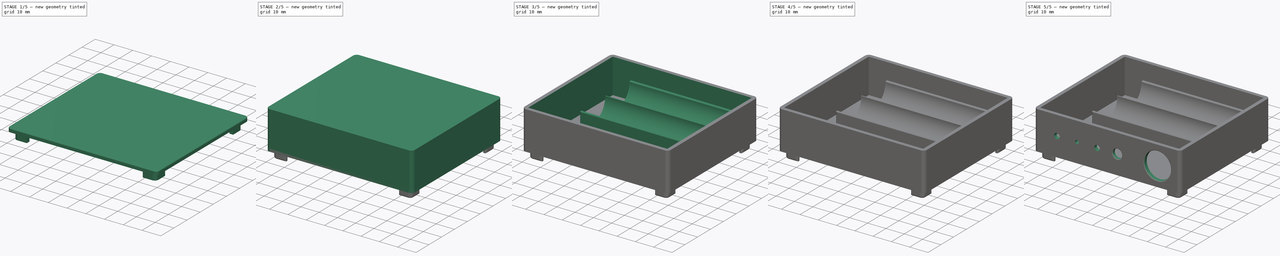
[diagram: build sequence overview — one tinted view per stage of 5, left to right]
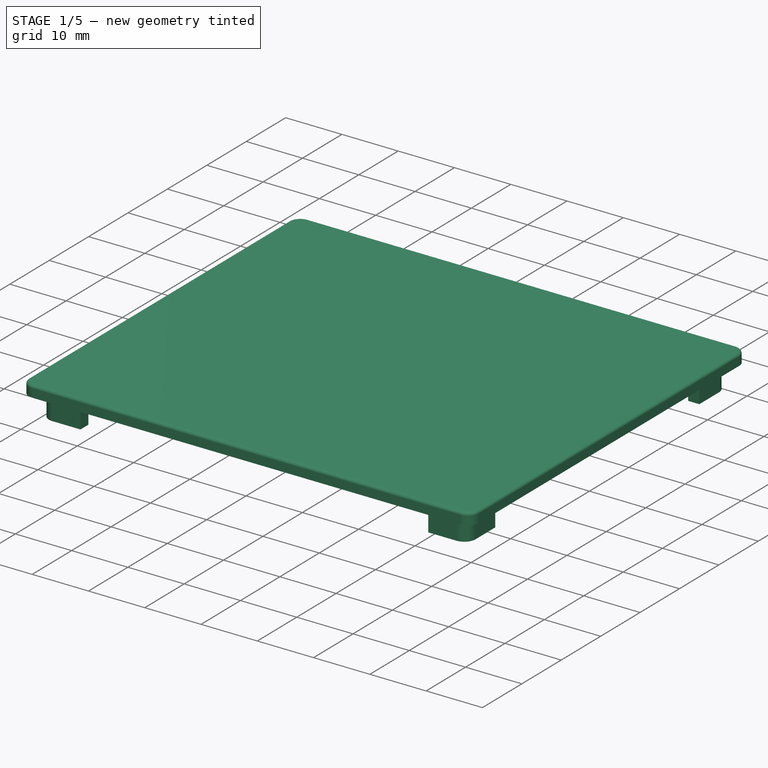
[diagram: stage 1 of 5 — iso view after this stage's code; geometry added in this stage tinted green]
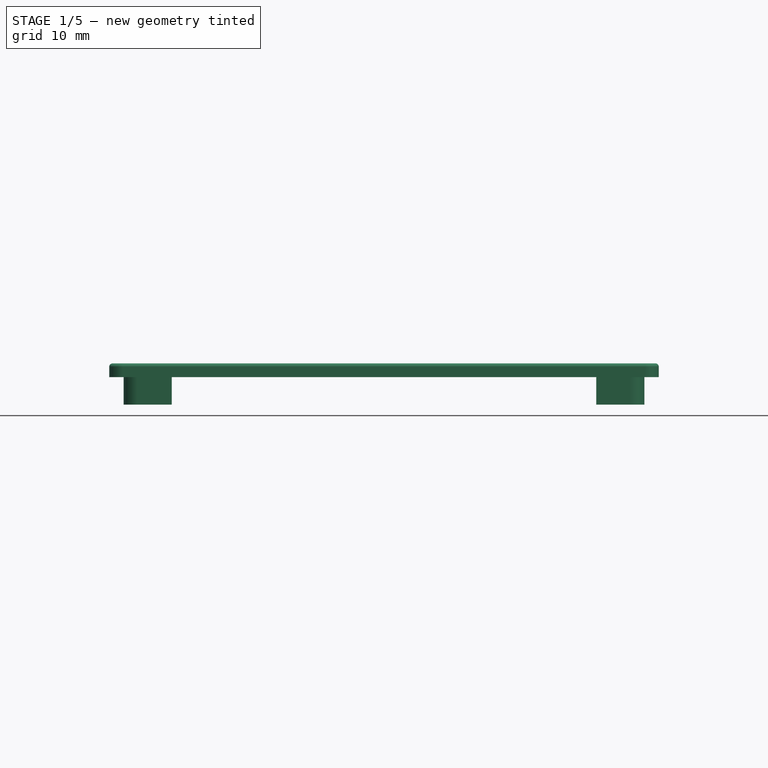
[diagram: stage 1 of 5 — front view after this stage's code; geometry added in this stage tinted green]
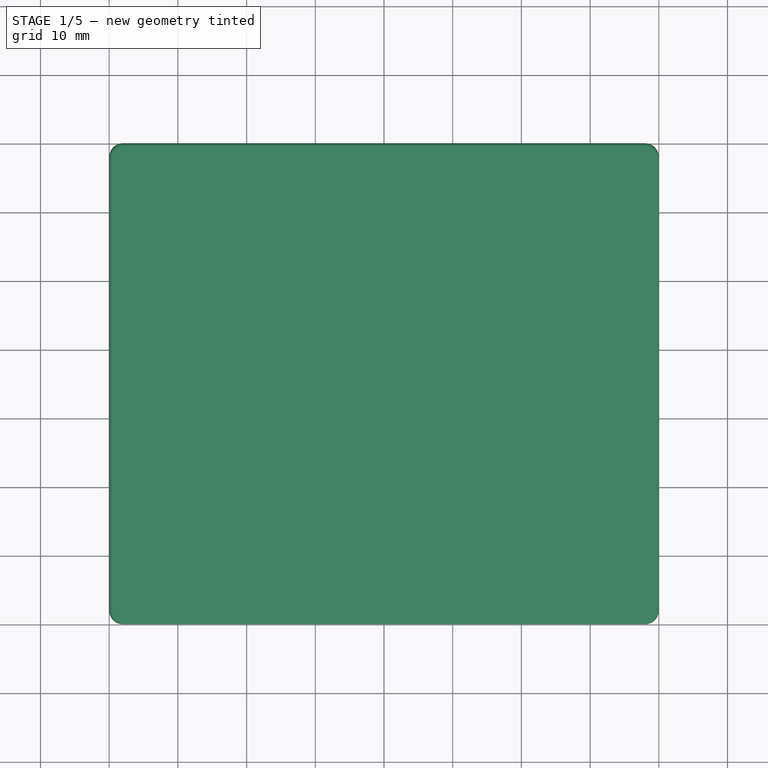
[diagram: stage 1 of 5 — top view after this stage's code; geometry added in this stage tinted green]
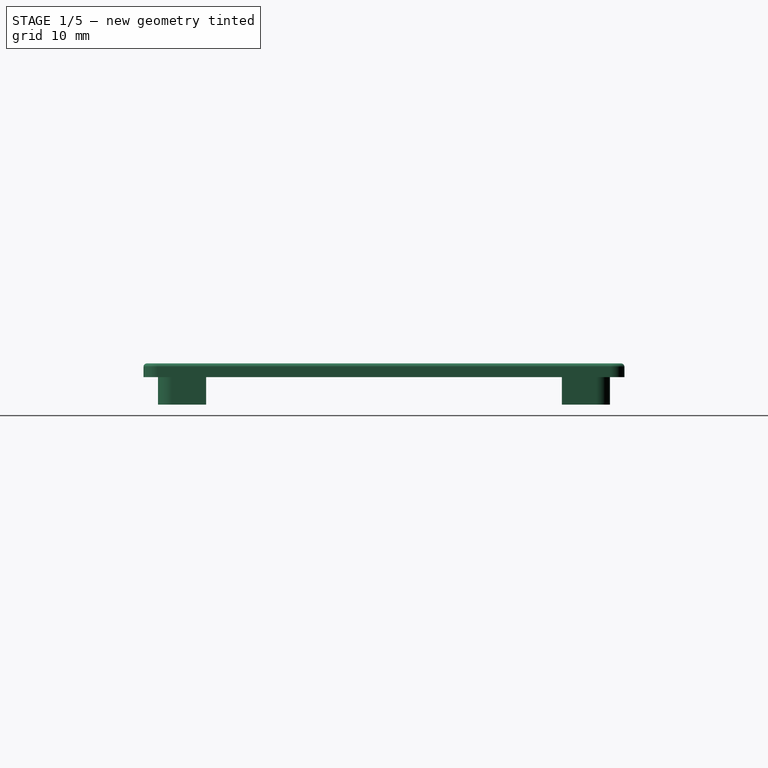
[diagram: stage 1 of 5 — right view after this stage's code; geometry added in this stage tinted green]
FCSTD DOCUMENT  (FreeCAD 1.0R39319 (Git))
Label: patterikotelo_3_7V
License: All rights reserved
LicenseURL: https://en.wikipedia.org/wiki/All_rights_reserved
objects: Sketcher::SketchObject×10, PartDesign::Pocket×6, PartDesign::Fillet×6, PartDesign::Pad×4, PartDesign::Body×2, App::Part×1
note: 70 computed .brp shape members not serialized (recipe doc carries the construction recipe); baked Part::Feature solids carry a one-line shape summary decoded from their .brp

FEATURE [PartDesign::Body] Body  label="container"
  AllowCompound = false
  Group = -> [Sketch,Pad,Sketch001,Pocket,Sketch002,Pad001,Sketch003,Pocket001,Fillet,Sketch004,Pocket002,Sketch005,Pocket003,Sketch006,Pocket004,Sketch007,Pocket005,Fillet001,Fillet002]
  Origin = -> Origin
  Tip = -> Fillet002
FEATURE [Sketcher::SketchObject] Sketch008
  ArcFitTolerance = 1e-06
  AttachmentSupport = -> [XY_Plane002]
  FullyConstrained = true
  MakeInternals = false
  MapMode = 5
  sketch-geometry (12):
    g0: LineSegment StartX=2 StartY=0 StartZ=0 EndX=78 EndY=0 EndZ=0
    g1: LineSegment StartX=80 StartY=2 StartZ=0 EndX=80 EndY=68 EndZ=0
    g2: LineSegment StartX=78 StartY=70 StartZ=0 EndX=2 EndY=70 EndZ=0
    g3: LineSegment StartX=0 StartY=68 StartZ=0 EndX=0 EndY=2 EndZ=0
    g4: ArcOfCircle CenterX=2 CenterY=68 CenterZ=0 NormalX=0 NormalY=0 NormalZ=1 AngleXU=0 Radius=2 StartAngle=1.5708 EndAngle=3.14159
    g5: GeomPoint [constr] X=0 Y=70 Z=0
    g6: ArcOfCircle CenterX=78 CenterY=68 CenterZ=0 NormalX=0 NormalY=0 NormalZ=1 AngleXU=0 Radius=2 StartAngle=-9e-16 EndAngle=1.5708
    g7: GeomPoint [constr] X=80 Y=70 Z=0
    g8: ArcOfCircle CenterX=78 CenterY=2 CenterZ=0 NormalX=0 NormalY=0 NormalZ=1 AngleXU=0 Radius=2 StartAngle=4.71239 EndAngle=6.28319
    g9: GeomPoint [constr] X=80 Y=0 Z=0
    g10: ArcOfCircle CenterX=2 CenterY=2 CenterZ=0 NormalX=0 NormalY=0 NormalZ=1 AngleXU=0 Radius=2 StartAngle=3.14159 EndAngle=4.71239
    g11: GeomPoint [constr] X=0 Y=0 Z=0
  constraints (27):
    c: Horizontal(g0)
    c: Horizontal(g2)
    c: Vertical(g1)
    c: Vertical(g3)
    c: PointOnObject(g5,g2)
    c: PointOnObject(g5,g3)
    c: Tangent(g2,g4) = -1.5708
    c: Tangent(g3,g4) = -1.5708
    c: PointOnObject(g7,g1)
    c: PointOnObject(g7,g2)
    c: Tangent(g1,g6) = -1.5708
    c: Tangent(g2,g6) = -1.5708
    c: PointOnObject(g9,g0)
    c: PointOnObject(g9,g1)
    c: Tangent(g0,g8) = -1.5708
    c: Tangent(g1,g8) = -1.5708
    c: PointOnObject(g11,g0)
    c: PointOnObject(g11,g3)
    c: Tangent(g0,g10) = -1.5708
    c: Tangent(g3,g10) = -1.5708
    c: Coincident(g11,g-1)
    c: DistanceY(g9,g7) = 70
    c: DistanceX(g5,g7) = 80
    c: Equal(g6,g8)
    c: Equal(g8,g10)
    c: Equal(g10,g4)
    c: Radius(g6) = 2
FEATURE [PartDesign::Pad] Pad002
  Direction = (0,0,1)
  Length = 2
  Length2 = 10
  Profile = -> Sketch008
  ReferenceAxis = -> Sketch008 [N_Axis]
  Refine = true
  Suppressed = false
  Type = 0
FEATURE [PartDesign::Fillet] Fillet003
  Base = -> Pad002 [Edge4]
  BaseFeature = -> Pad002
  Radius = 0.5
  Refine = true
  SupportTransform = false
  Suppressed = false
  UseAllEdges = false
FEATURE [Sketcher::SketchObject] Sketch009
  ArcFitTolerance = 1e-06
  AttachmentSupport = -> [Fillet003]
  ExternalGeometry = -> [Fillet003]
  FullyConstrained = true
  MakeInternals = false
  MapMode = 5
  Placement = pos=(0,0,0) rot=(1,0,0;3.14159rad)
  sketch-geometry (32):
    g0: LineSegment StartX=2.1 StartY=-9.1 StartZ=0 EndX=2.1 EndY=-4.1 EndZ=0
    g1: LineSegment StartX=4.1 StartY=-2.1 StartZ=0 EndX=9.1 EndY=-2.1 EndZ=0
    g2: LineSegment StartX=9.1 StartY=-2.1 StartZ=0 EndX=9.1 EndY=-4.1 EndZ=0
    g3: LineSegment StartX=9.1 StartY=-4.1 StartZ=0 EndX=4.1 EndY=-4.1 EndZ=0
    g4: LineSegment StartX=4.1 StartY=-4.1 StartZ=0 EndX=4.1 EndY=-9.1 EndZ=0
    g5: LineSegment StartX=4.1 StartY=-9.1 StartZ=0 EndX=2.1 EndY=-9.1 EndZ=0
    g6: LineSegment StartX=70.9 StartY=-2.1 StartZ=0 EndX=75.9 EndY=-2.1 EndZ=0
    g7: LineSegment StartX=77.9 StartY=-4.1 StartZ=0 EndX=77.9 EndY=-9.1 EndZ=0
    g8: LineSegment StartX=77.9 StartY=-9.1 StartZ=0 EndX=75.9 EndY=-9.1 EndZ=0
    g9: LineSegment StartX=75.9 StartY=-9.1 StartZ=0 EndX=75.9 EndY=-4.1 EndZ=0
    g10: LineSegment StartX=75.9 StartY=-4.1 StartZ=0 EndX=70.9 EndY=-4.1 EndZ=0
    g11: LineSegment StartX=70.9 StartY=-4.1 StartZ=0 EndX=70.9 EndY=-2.1 EndZ=0
    g12: LineSegment StartX=77.9 StartY=-60.9 StartZ=0 EndX=77.9 EndY=-65.9 EndZ=0
    g13: LineSegment StartX=75.9 StartY=-67.9 StartZ=0 EndX=70.9 EndY=-67.9 EndZ=0
    g14: LineSegment StartX=70.9 StartY=-67.9 StartZ=0 EndX=70.9 EndY=-65.9 EndZ=0
    g15: LineSegment StartX=70.9 StartY=-65.9 StartZ=0 EndX=75.9 EndY=-65.9 EndZ=0
    g16: LineSegment StartX=75.9 StartY=-65.9 StartZ=0 EndX=75.9 EndY=-60.9 EndZ=0
    g17: LineSegment StartX=75.9 StartY=-60.9 StartZ=0 EndX=77.9 EndY=-60.9 EndZ=0
    g18: LineSegment StartX=2.1 StartY=-60.9 StartZ=0 EndX=2.1 EndY=-65.9 EndZ=0
    g19: LineSegment StartX=4.1 StartY=-67.9 StartZ=0 EndX=9.1 EndY=-67.9 EndZ=0
    g20: LineSegment StartX=9.1 StartY=-67.9 StartZ=0 EndX=9.1 EndY=-65.9 EndZ=0
    g21: LineSegment StartX=9.1 StartY=-65.9 StartZ=0 EndX=4.1 EndY=-65.9 EndZ=0
    g22: LineSegment StartX=4.1 StartY=-65.9 StartZ=0 EndX=4.1 EndY=-60.9 EndZ=0
    g23: LineSegment StartX=4.1 StartY=-60.9 StartZ=0 EndX=2.1 EndY=-60.9 EndZ=0
    g24: ArcOfCircle CenterX=4.1 CenterY=-4.1 CenterZ=0 NormalX=0 NormalY=0 NormalZ=1 AngleXU=0 Radius=2 StartAngle=1.5708 EndAngle=3.14159
    g25: ArcOfCircle CenterX=75.9 CenterY=-4.1 CenterZ=0 NormalX=0 NormalY=0 NormalZ=1 AngleXU=0 Radius=2 StartAngle=1e-16 EndAngle=1.5708
    g26: ArcOfCircle CenterX=75.9 CenterY=-65.9 CenterZ=0 NormalX=0 NormalY=0 NormalZ=1 AngleXU=0 Radius=2 StartAngle=4.71239 EndAngle=6.28319
    g27: ArcOfCircle CenterX=4.1 CenterY=-65.9 CenterZ=0 NormalX=0 NormalY=0 NormalZ=1 AngleXU=0 Radius=2 StartAngle=3.14159 EndAngle=4.71239
    g28: LineSegment [constr] StartX=78 StartY=-70 StartZ=0 EndX=75.9 EndY=-65.9 EndZ=0
    g29: LineSegment [constr] StartX=80 StartY=-68 StartZ=0 EndX=75.9 EndY=-65.9 EndZ=0
    g30: LineSegment [constr] StartX=4.1 StartY=-4.1 StartZ=0 EndX=0 EndY=-2 EndZ=0
    g31: LineSegment [constr] StartX=4.1 StartY=-4.1 StartZ=0 EndX=2 EndY=0 EndZ=0
  constraints (87):
    c: Vertical(g0)
    c: Horizontal(g1)
    c: Coincident(g1,g2)
    c: Coincident(g2,g3)
    c: Horizontal(g3)
    c: Coincident(g3,g4)
    c: Vertical(g4)
    c: Coincident(g4,g5)
    c: Coincident(g5,g0)
    c: Horizontal(g5)
    c: Vertical(g2)
    c: Equal(g4,g3)
    c: Horizontal(g6)
    c: Vertical(g7)
    c: Coincident(g7,g8)
    c: Horizontal(g8)
    c: Coincident(g8,g9)
    c: Coincident(g9,g10)
    c: Horizontal(g10)
    c: Coincident(g10,g11)
    c: Coincident(g11,g6)
    c: Vertical(g12)
    c: Horizontal(g13)
    c: Coincident(g13,g14)
    c: Coincident(g14,g15)
    c: Coincident(g15,g16)
    c: Coincident(g16,g17)
    c: Coincident(g17,g12)
    c: Vertical(g18)
    c: Horizontal(g19)
    c: Coincident(g19,g20)
    c: Vertical(g20)
    c: Coincident(g20,g21)
    c: Horizontal(g21)
    c: Coincident(g21,g22)
    c: Vertical(g22)
    c: Coincident(g22,g23)
    c: Coincident(g23,g18)
    c: Horizontal(g23)
    c: Equal(g22,g21)
    c: Equal(g16,g15)
    c: Horizontal(g15)
    c: Vertical(g16)
    c: Vertical(g14)
    c: Horizontal(g17)
    c: Vertical(g11)
    c: Vertical(g9)
    c: Equal(g21,g15)
    c: Equal(g16,g9)
    c: Equal(g9,g10)
    c: Equal(g10,g3)
    c: Tangent(g0,g24) = 1.5708
    c: Tangent(g1,g24) = 1.5708
    c: Tangent(g6,g25) = 1.5708
    c: Tangent(g7,g25) = 1.5708
    c: Tangent(g12,g26) = 1.5708
    c: Tangent(g13,g26) = 1.5708
    c: Tangent(g18,g27) = -1.5708
    c: Tangent(g19,g27) = -1.5708
    c: Equal(g14,g20)
    c: Equal(g20,g17)
    c: Equal(g17,g23)
    c: Equal(g23,g5)
    c: Equal(g2,g11)
    c: Equal(g11,g8)
    c: Equal(g24,g25)
    c: Equal(g25,g26)
    c: Equal(g26,g27)
    c: Coincident(g24,g3)
    c: Radius(g24) = 2
    c: DistanceY(g4,g4) = 5
    c: DistanceY(g1,g-6) = 2.1
    c: DistanceX(g-6,g0) = 2.1
    c: Horizontal(g1,g6)
    c: Vertical(g7,g12)
    c: Horizontal(g13,g19)
    c: Vertical(g18,g0)
    c: Coincident(g28,g-4)
    c: Coincident(g28,g26)
    c: Coincident(g29,g-4)
    c: Coincident(g29,g15)
    c: Coincident(g30,g3)
    c: Coincident(g30,g-6)
    c: Coincident(g31,g3)
    c: Coincident(g31,g-6)
    c: Equal(g31,g29)
    c: Equal(g29,g28)
FEATURE [PartDesign::Pad] Pad003
  BaseFeature = -> Fillet003
  Direction = (0,0,-1)
  Length = 4
  Length2 = 10
  Profile = -> Sketch009
  ReferenceAxis = -> Sketch009 [N_Axis]
  Refine = true
  Suppressed = false
  Type = 0
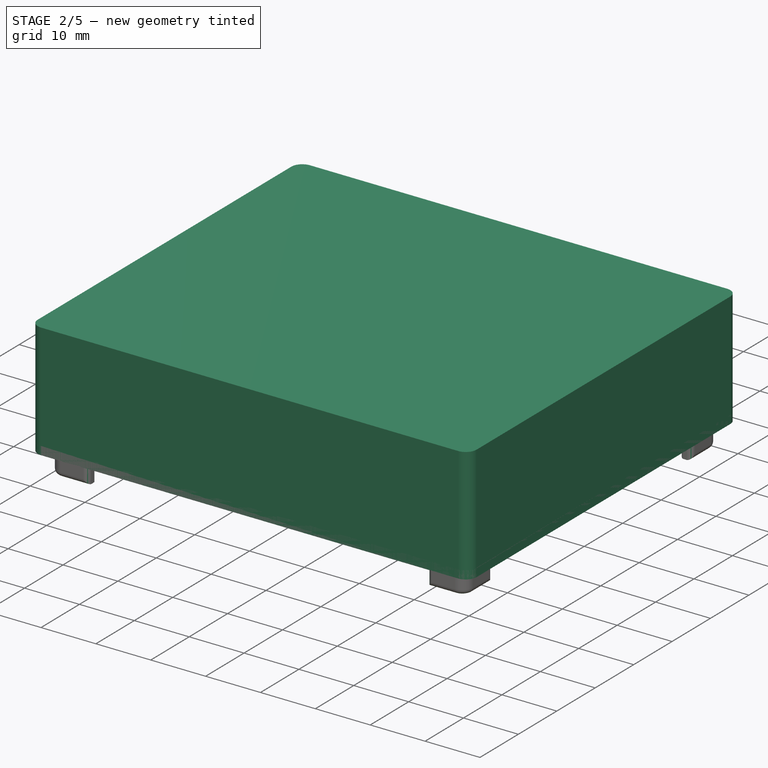
[diagram: stage 2 of 5 — iso view after this stage's code; geometry added in this stage tinted green]
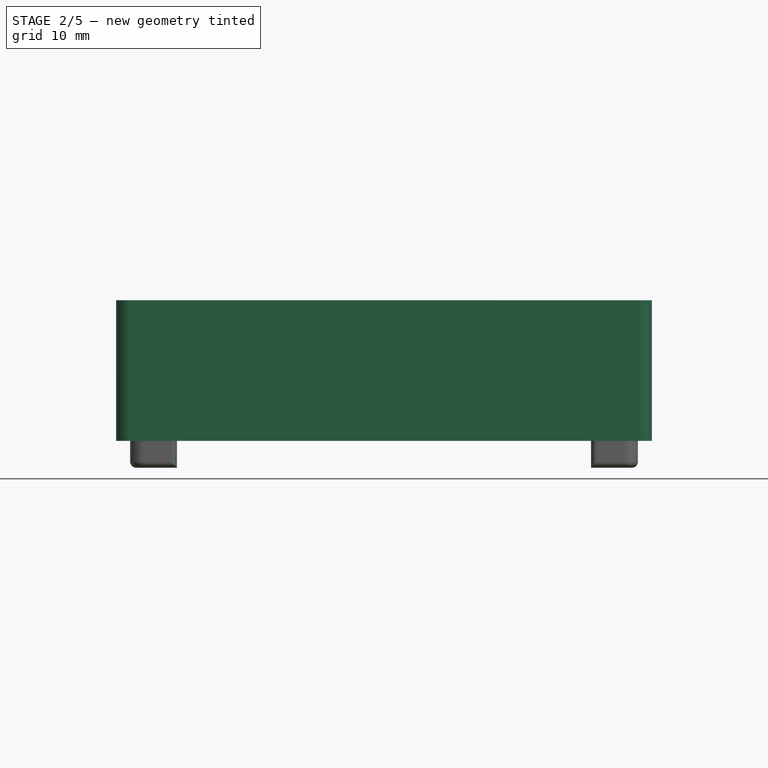
[diagram: stage 2 of 5 — front view after this stage's code; geometry added in this stage tinted green]
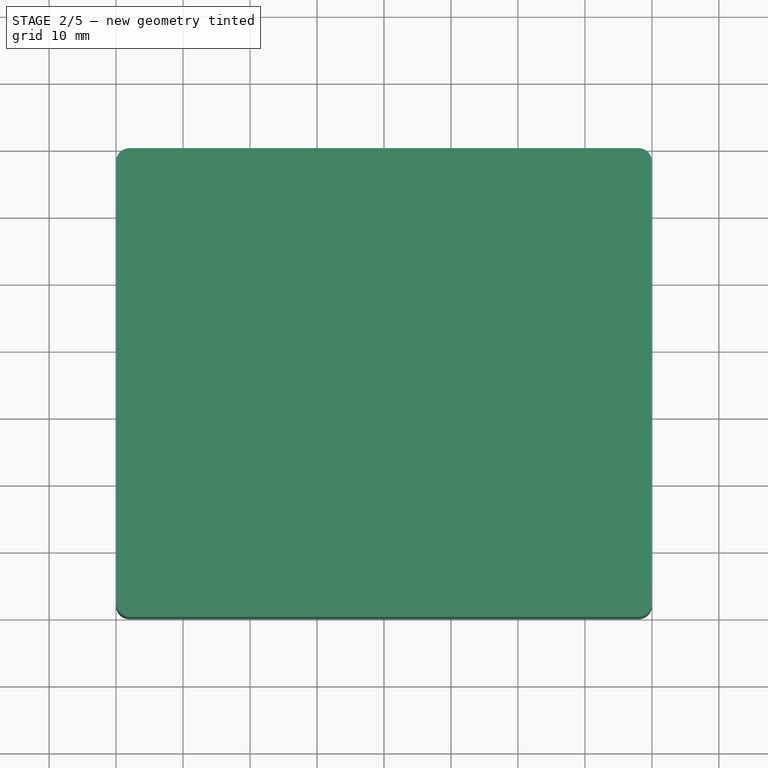
[diagram: stage 2 of 5 — top view after this stage's code; geometry added in this stage tinted green]
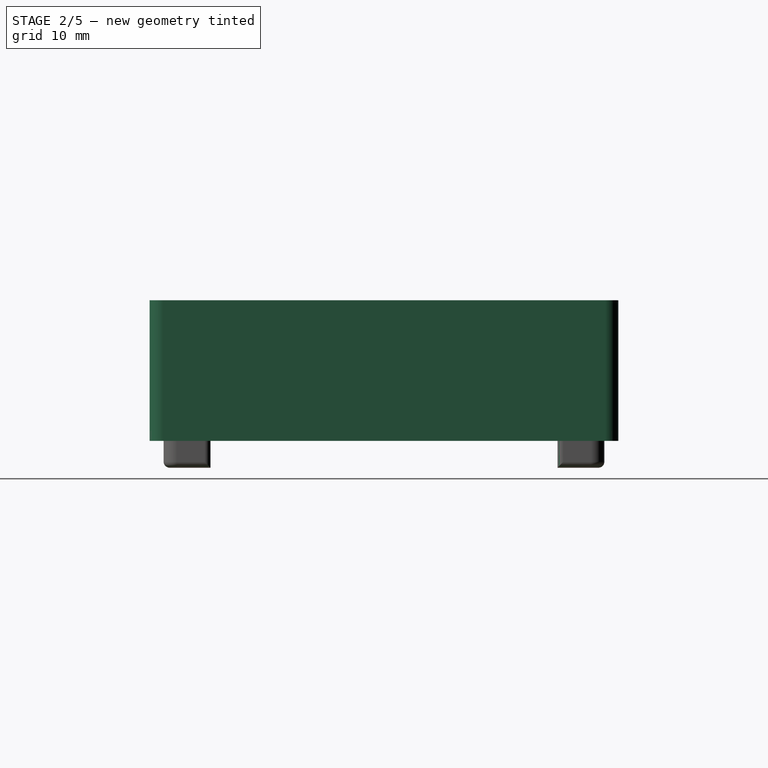
[diagram: stage 2 of 5 — right view after this stage's code; geometry added in this stage tinted green]
FEATURE [Sketcher::SketchObject] Sketch
  ArcFitTolerance = 1e-06
  AttachmentSupport = -> [XY_Plane]
  FullyConstrained = true
  MakeInternals = false
  MapMode = 5
  sketch-geometry (12):
    g0: LineSegment StartX=2 StartY=0 StartZ=0 EndX=78 EndY=0 EndZ=0
    g1: LineSegment StartX=80 StartY=2 StartZ=0 EndX=80 EndY=68 EndZ=0
    g2: LineSegment StartX=78 StartY=70 StartZ=0 EndX=2 EndY=70 EndZ=0
    g3: LineSegment StartX=0 StartY=68 StartZ=0 EndX=0 EndY=2 EndZ=0
    g4: ArcOfCircle CenterX=2 CenterY=68 CenterZ=0 NormalX=0 NormalY=0 NormalZ=1 AngleXU=0 Radius=2 StartAngle=1.5708 EndAngle=3.14159
    g5: GeomPoint [constr] X=0 Y=70 Z=0
    g6: ArcOfCircle CenterX=78 CenterY=68 CenterZ=0 NormalX=0 NormalY=0 NormalZ=1 AngleXU=0 Radius=2 StartAngle=1.5e-15 EndAngle=1.5708
    g7: GeomPoint [constr] X=80 Y=70 Z=0
    g8: ArcOfCircle CenterX=78 CenterY=2 CenterZ=0 NormalX=0 NormalY=0 NormalZ=1 AngleXU=0 Radius=2 StartAngle=4.71239 EndAngle=6.28319
    g9: GeomPoint [constr] X=80 Y=0 Z=0
    g10: ArcOfCircle CenterX=2 CenterY=2 CenterZ=0 NormalX=0 NormalY=0 NormalZ=1 AngleXU=0 Radius=2 StartAngle=3.14159 EndAngle=4.71239
    g11: GeomPoint [constr] X=0 Y=0 Z=0
  constraints (27):
    c: Horizontal(g0)
    c: Horizontal(g2)
    c: Vertical(g1)
    c: Vertical(g3)
    c: DistanceX(g5,g7) = 80
    c: DistanceY(g9,g7) = 70
    c: PointOnObject(g5,g2)
    c: PointOnObject(g5,g3)
    c: Tangent(g2,g4) = -1.5708
    c: Tangent(g3,g4) = -1.5708
    c: PointOnObject(g7,g1)
    c: PointOnObject(g7,g2)
    c: Tangent(g1,g6) = -1.5708
    c: Tangent(g2,g6) = -1.5708
    c: PointOnObject(g9,g0)
    c: PointOnObject(g9,g1)
    c: Tangent(g0,g8) = -1.5708
    c: Tangent(g1,g8) = -1.5708
    c: PointOnObject(g11,g0)
    c: PointOnObject(g11,g3)
    c: Tangent(g0,g10) = -1.5708
    c: Tangent(g3,g10) = -1.5708
    c: Coincident(g11,g-1)
    c: Equal(g10,g8)
    c: Equal(g8,g6)
    c: Equal(g6,g4)
    c: Radius(g6) = 2
FEATURE [PartDesign::Pad] Pad
  Direction = (0,0,1)
  Length = 21
  Length2 = 10
  Profile = -> Sketch
  ReferenceAxis = -> Sketch [N_Axis]
  Refine = true
  Suppressed = false
  Type = 0
FEATURE [PartDesign::Fillet] Fillet004
  Base = -> Pad003 [Edge67,Edge91,Edge119,Edge103,Edge66,Edge88,Edge116,Edge94,Edge108,Edge100,Edge74,Edge80]
  BaseFeature = -> Pad003
  Radius = 0.9
  Refine = true
  SupportTransform = false
  Suppressed = false
  UseAllEdges = false
FEATURE [PartDesign::Fillet] Fillet005
  Base = -> Fillet004 [Edge106,Edge98,Edge103,Edge52,Edge57,Edge60,Edge122,Edge130,Edge127,Edge94,Edge95,Edge86,Edge91,Edge131,Edge61,Edge107]
  BaseFeature = -> Fillet004
  Radius = 0.5
  Refine = true
  SupportTransform = false
  Suppressed = false
  UseAllEdges = false
FEATURE [PartDesign::Body] Body001  label="lid"
  AllowCompound = false
  Group = -> [Sketch008,Pad002,Fillet003,Sketch009,Pad003,Fillet004,Fillet005]
  Origin = -> Origin002
  Placement = pos=(0,0,21) rot=(0,0,1;0rad)
  Tip = -> Fillet005
FEATURE [App::Part] Part
  Group = -> [Body,Body001]
  Origin = -> Origin001
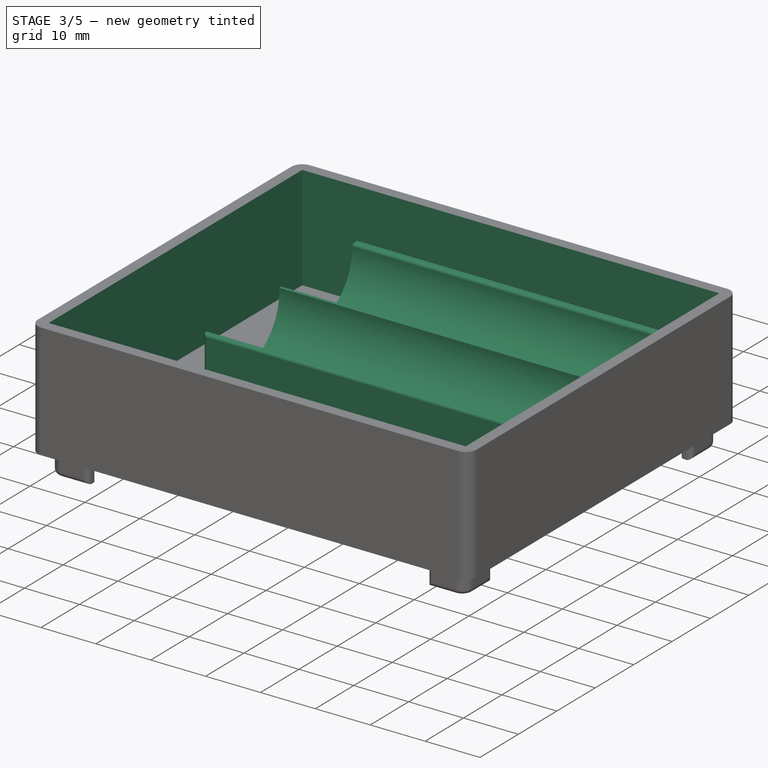
[diagram: stage 3 of 5 — iso view after this stage's code; geometry added in this stage tinted green]
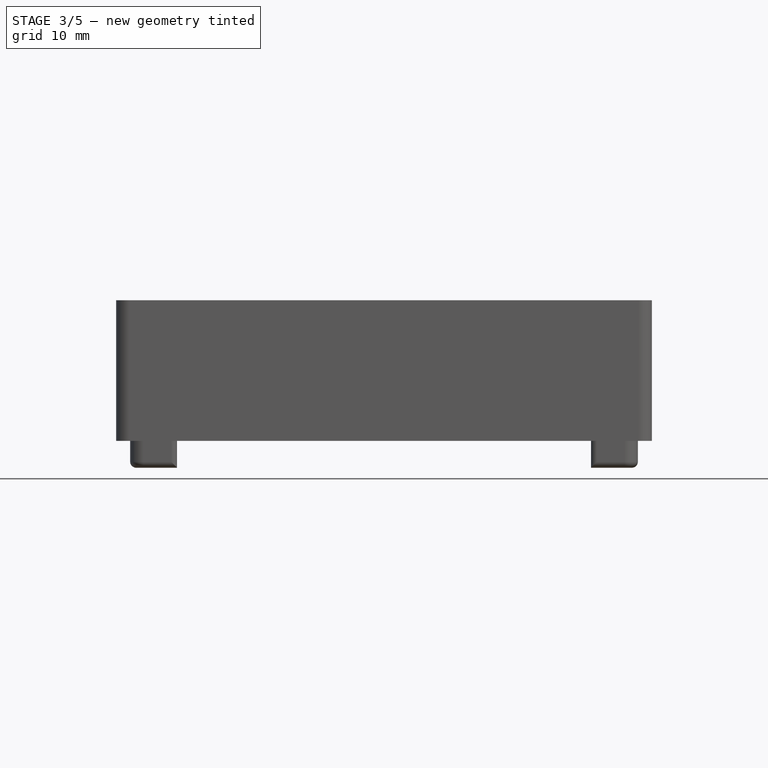
[diagram: stage 3 of 5 — front view after this stage's code; geometry added in this stage tinted green]
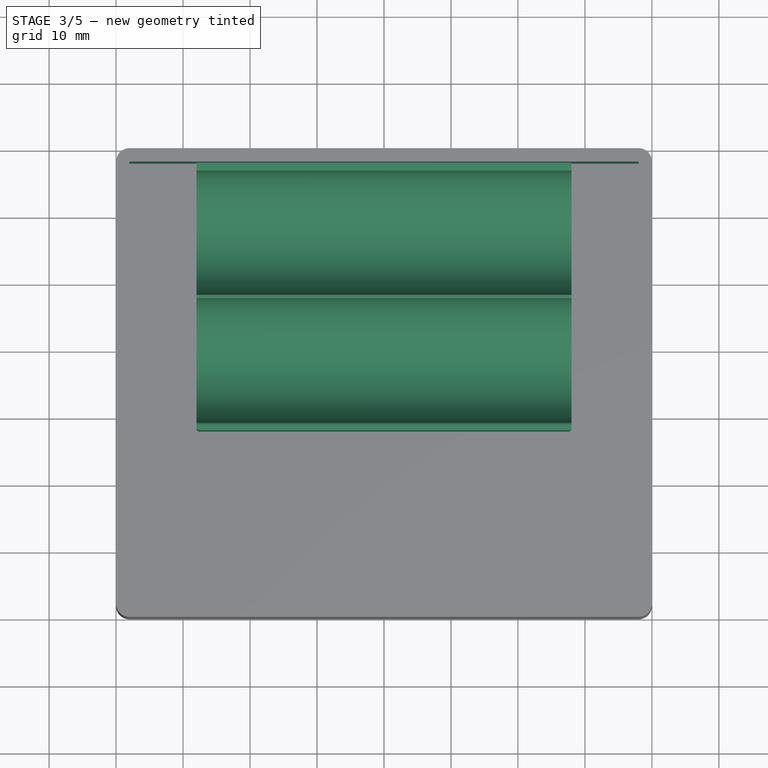
[diagram: stage 3 of 5 — top view after this stage's code; geometry added in this stage tinted green]
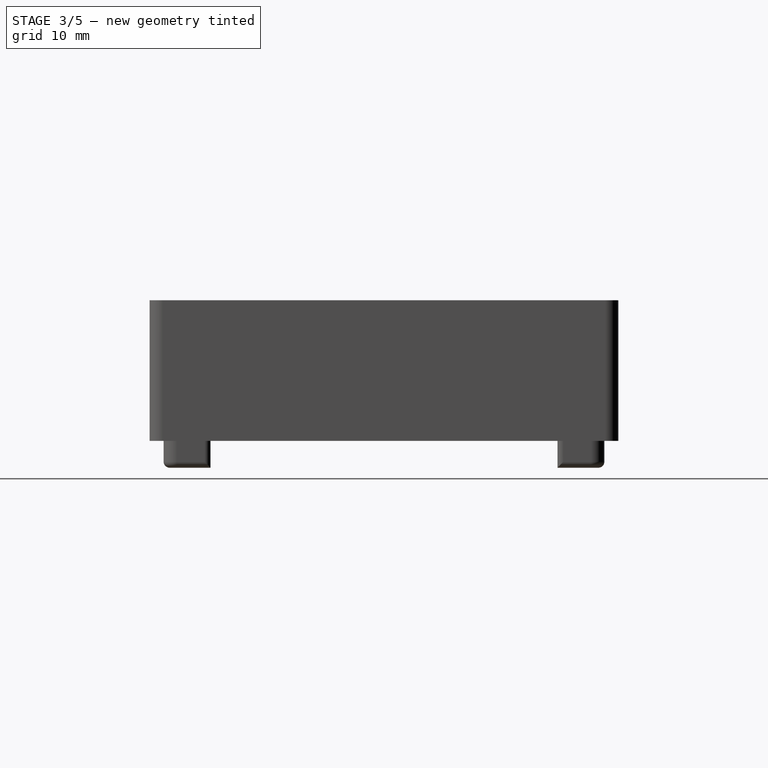
[diagram: stage 3 of 5 — right view after this stage's code; geometry added in this stage tinted green]
FEATURE [Sketcher::SketchObject] Sketch001
  ArcFitTolerance = 1e-06
  AttachmentSupport = -> [Pad]
  ExternalGeometry = -> [Pad]
  FullyConstrained = true
  MakeInternals = false
  MapMode = 5
  Placement = pos=(0,0,21) rot=(0,0,1;0rad)
  sketch-geometry (4):
    g0: LineSegment StartX=2 StartY=2 StartZ=0 EndX=78 EndY=2 EndZ=0
    g1: LineSegment StartX=78 StartY=2 StartZ=0 EndX=78 EndY=68 EndZ=0
    g2: LineSegment StartX=78 StartY=68 StartZ=0 EndX=2 EndY=68 EndZ=0
    g3: LineSegment StartX=2 StartY=68 StartZ=0 EndX=2 EndY=2 EndZ=0
  constraints (10):
    c: Coincident(g0,g1)
    c: Coincident(g1,g2)
    c: Coincident(g2,g3)
    c: Coincident(g3,g0)
    c: Horizontal(g0)
    c: Horizontal(g2)
    c: Vertical(g1)
    c: Coincident(g2,g-6)
    c: Coincident(g0,g-5)
    c: Vertical(g3)
FEATURE [PartDesign::Pocket] Pocket
  BaseFeature = -> Pad
  Direction = (0,0,-1)
  Length = 19
  Length2 = 5
  Profile = -> Sketch001
  ReferenceAxis = -> Sketch001 [N_Axis]
  Refine = true
  Suppressed = false
  Type = 0
FEATURE [Sketcher::SketchObject] Sketch002
  ArcFitTolerance = 1e-06
  AttachmentSupport = -> [Pocket]
  ExternalGeometry = -> [Pocket]
  FullyConstrained = true
  MakeInternals = false
  MapMode = 5
  Placement = pos=(0,0,2) rot=(0,0,1;0rad)
  sketch-geometry (4):
    g0: LineSegment StartX=12 StartY=68 StartZ=0 EndX=12 EndY=28 EndZ=0
    g1: LineSegment StartX=12 StartY=28 StartZ=0 EndX=68 EndY=28 EndZ=0
    g2: LineSegment StartX=68 StartY=28 StartZ=0 EndX=68 EndY=68 EndZ=0
    g3: LineSegment StartX=68 StartY=68 StartZ=0 EndX=12 EndY=68 EndZ=0
  constraints (12):
    c: Coincident(g0,g1)
    c: Coincident(g1,g2)
    c: Coincident(g2,g3)
    c: Coincident(g3,g0)
    c: Vertical(g0)
    c: Vertical(g2)
    c: Horizontal(g1)
    c: Horizontal(g3)
    c: DistanceX(g2,g-3) = 10
    c: DistanceX(g-3,g0) = 10
    c: Horizontal(g0,g-3)
    c: DistanceY(g0,g0) = 40
FEATURE [PartDesign::Pad] Pad001
  BaseFeature = -> Pocket
  Direction = (0,0,1)
  Length = 10
  Length2 = 10
  Profile = -> Sketch002
  ReferenceAxis = -> Sketch002 [N_Axis]
  Refine = true
  Suppressed = false
  Type = 0
FEATURE [Sketcher::SketchObject] Sketch003
  ArcFitTolerance = 1e-06
  AttachmentSupport = -> [Pad001]
  ExternalGeometry = -> [Pad001]
  FullyConstrained = true
  MakeInternals = false
  MapMode = 5
  Placement = pos=(12,0,0) rot=(0.57735,-0.57735,-0.57735;2.0944rad)
  sketch-geometry (4):
    g0: Circle CenterX=-57.5 CenterY=11.5 CenterZ=0 NormalX=0 NormalY=0 NormalZ=1 AngleXU=0 Radius=9.25
    g1: Circle CenterX=-38.5 CenterY=11.5 CenterZ=0 NormalX=0 NormalY=0 NormalZ=1 AngleXU=0 Radius=9.25
    g2: LineSegment [constr] StartX=-68 StartY=12 StartZ=0 EndX=-57.5 EndY=12 EndZ=0
    g3: LineSegment [constr] StartX=-28 StartY=12 StartZ=0 EndX=-38.5 EndY=12 EndZ=0
  constraints (12):
    c: Equal(g1,g0)
    c: Diameter(g1) = 18.5
    c: Coincident(g2,g-3)
    c: Coincident(g3,g-3)
    c: Equal(g3,g2)
    c: DistanceX(g0,g1) = 19
    c: PointOnObject(g2,g-3)
    c: PointOnObject(g3,g-3)
    c: Vertical(g3,g1)
    c: Vertical(g0,g2)
    c: Horizontal(g0,g1)
    c: DistanceY(g1,g3) = 0.5
FEATURE [PartDesign::Pocket] Pocket001
  BaseFeature = -> Pad001
  Direction = (1,0,0)
  Length = 59
  Length2 = 5
  Profile = -> Sketch003
  ReferenceAxis = -> Sketch003 [N_Axis]
  Refine = true
  Suppressed = false
  Type = 0
FEATURE [PartDesign::Fillet] Fillet
  Base = -> Pocket001 [Edge61,Edge44,Edge60,Edge62,Edge53]
  BaseFeature = -> Pocket001
  Radius = 0.5
  Refine = true
  SupportTransform = false
  Suppressed = false
  UseAllEdges = false
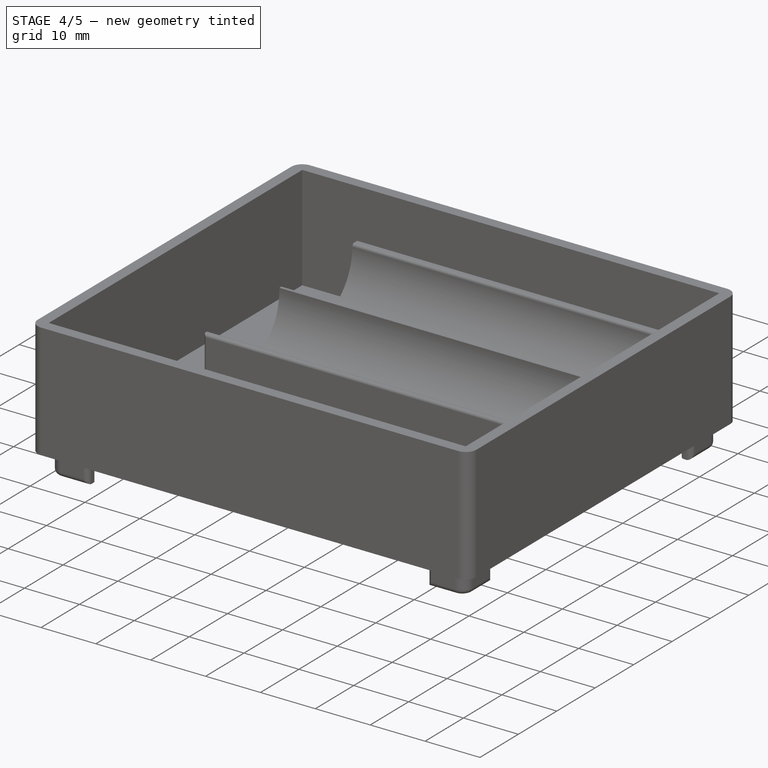
[diagram: stage 4 of 5 — iso view after this stage's code; geometry added in this stage tinted green]
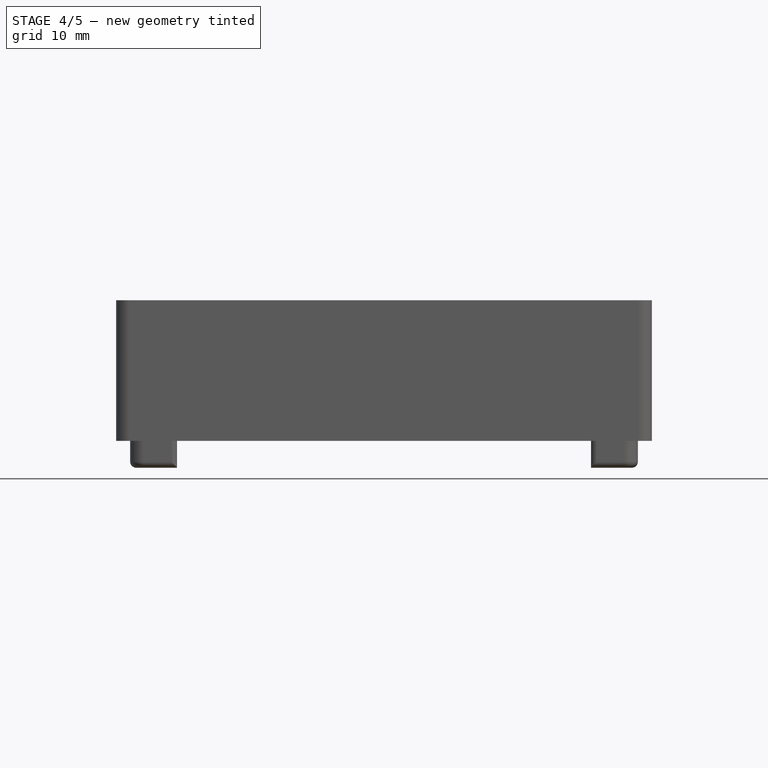
[diagram: stage 4 of 5 — front view after this stage's code; geometry added in this stage tinted green]
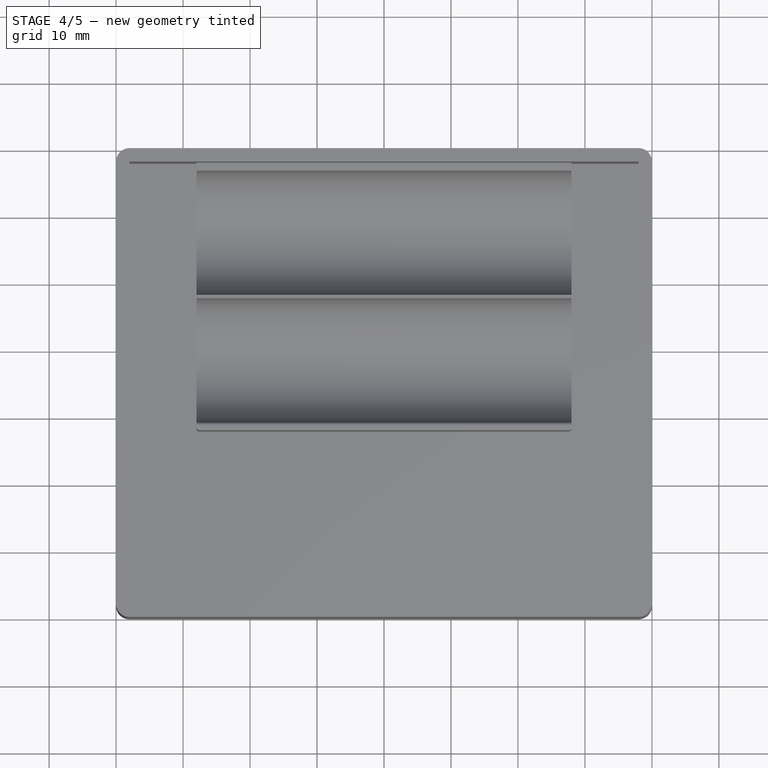
[diagram: stage 4 of 5 — top view after this stage's code; geometry added in this stage tinted green]
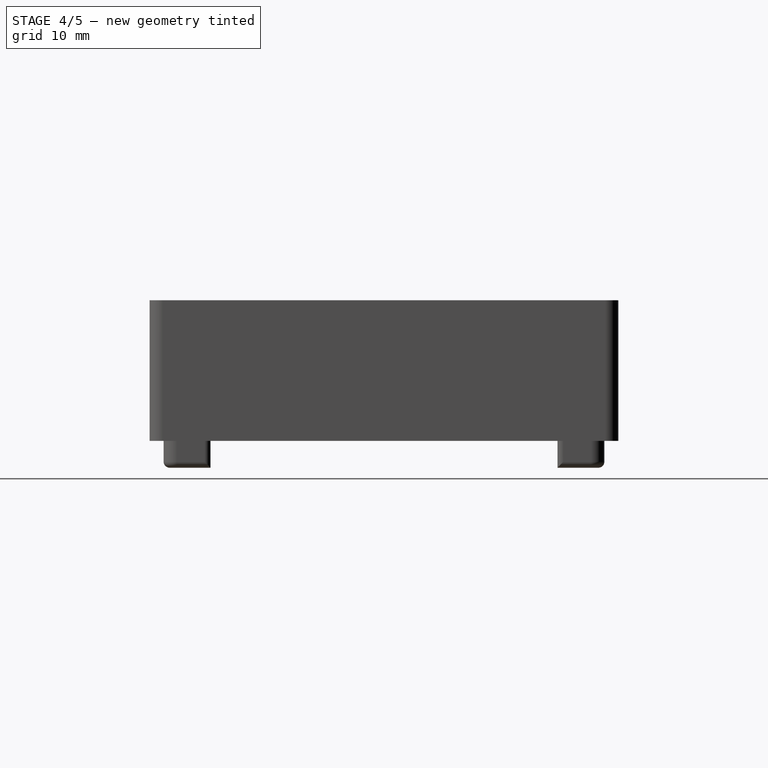
[diagram: stage 4 of 5 — right view after this stage's code; geometry added in this stage tinted green]
FEATURE [Sketcher::SketchObject] Sketch004
  ArcFitTolerance = 1e-06
  AttachmentSupport = -> [Fillet]
  ExternalGeometry = -> [Fillet]
  FullyConstrained = true
  MakeInternals = false
  MapMode = 5
  Placement = pos=(2,0,0) rot=(0.57735,0.57735,0.57735;2.0944rad)
  sketch-geometry (4):
    g0: LineSegment StartX=28 StartY=2 StartZ=0 EndX=28 EndY=6.5 EndZ=0
    g1: LineSegment StartX=28 StartY=6.5 StartZ=0 EndX=10.5 EndY=6.5 EndZ=0
    g2: LineSegment StartX=10.5 StartY=6.5 StartZ=0 EndX=10.5 EndY=2 EndZ=0
    g3: LineSegment StartX=10.5 StartY=2 StartZ=0 EndX=28 EndY=2 EndZ=0
  constraints (11):
    c: Coincident(g0,g1)
    c: Coincident(g1,g2)
    c: Coincident(g2,g3)
    c: Coincident(g3,g0)
    c: Vertical(g0)
    c: Vertical(g2)
    c: Horizontal(g1)
    c: Horizontal(g3)
    c: Coincident(g0,g-4)
    c: DistanceX(g3,g3) = 17.5
    c: DistanceY(g0,g0) = 4.5
FEATURE [PartDesign::Pocket] Pocket002
  BaseFeature = -> Fillet
  Direction = (-1,0,0)
  Length = 1
  Length2 = 5
  Profile = -> Sketch004
  ReferenceAxis = -> Sketch004 [N_Axis]
  Refine = true
  Suppressed = false
  Type = 0
FEATURE [Sketcher::SketchObject] Sketch005
  ArcFitTolerance = 1e-06
  AttachmentSupport = -> [Pocket002]
  ExternalGeometry = -> [Pocket002]
  FullyConstrained = true
  MakeInternals = false
  MapMode = 5
  Placement = pos=(1,0,0) rot=(0.57735,0.57735,0.57735;2.0944rad)
  sketch-geometry (6):
    g0: LineSegment StartX=16.25 StartY=6.5 StartZ=0 EndX=22.25 EndY=6.5 EndZ=0
    g1: ArcOfCircle CenterX=22.25 CenterY=4.85 CenterZ=0 NormalX=0 NormalY=0 NormalZ=1 AngleXU=0 Radius=1.65 StartAngle=4.71239 EndAngle=7.85398
    g2: LineSegment StartX=22.25 StartY=3.2 StartZ=0 EndX=16.25 EndY=3.2 EndZ=0
    g3: ArcOfCircle CenterX=16.25 CenterY=4.85 CenterZ=0 NormalX=0 NormalY=0 NormalZ=1 AngleXU=0 Radius=1.65 StartAngle=1.5708 EndAngle=4.71239
    g4: LineSegment [constr] StartX=10.5 StartY=6.5 StartZ=0 EndX=16.25 EndY=6.5 EndZ=0
    g5: LineSegment [constr] StartX=22.25 StartY=6.5 StartZ=0 EndX=28 EndY=6.5 EndZ=0
  constraints (16):
    c: Horizontal(g0)
    c: Tangent(g0,g1) = 1.5708
    c: Coincident(g1,g2)
    c: Horizontal(g2)
    c: Tangent(g2,g3) = 1.5708
    c: Coincident(g3,g0)
    c: Vertical(g3,g0)
    c: Vertical(g1,g1)
    c: DistanceY(g1,g0) = 3.3
    c: DistanceX(g3,g1) = 6
    c: PointOnObject(g0,g-3)
    c: Coincident(g4,g-3)
    c: Coincident(g4,g0)
    c: Coincident(g5,g0)
    c: Coincident(g5,g-3)
    c: Equal(g5,g4)
FEATURE [PartDesign::Pocket] Pocket003
  BaseFeature = -> Pocket002
  Direction = (-1,0,0)
  Length = 5
  Length2 = 5
  Profile = -> Sketch005
  ReferenceAxis = -> Sketch005 [N_Axis]
  Refine = true
  Suppressed = false
  Type = 0
FEATURE [Sketcher::SketchObject] Sketch006
  ArcFitTolerance = 1e-06
  AttachmentSupport = -> [Pocket003]
  ExternalGeometry = -> [Pocket003]
  FullyConstrained = true
  MakeInternals = false
  MapMode = 5
  Placement = pos=(0,0,2) rot=(0,0,1;0rad)
  sketch-geometry (4):
    g0: LineSegment StartX=21 StartY=28 StartZ=0 EndX=21 EndY=10.5 EndZ=0
    g1: LineSegment StartX=21 StartY=10.5 StartZ=0 EndX=26 EndY=10.5 EndZ=0
    g2: LineSegment StartX=26 StartY=10.5 StartZ=0 EndX=26 EndY=28 EndZ=0
    g3: LineSegment StartX=26 StartY=28 StartZ=0 EndX=21 EndY=28 EndZ=0
  constraints (12):
    c: Coincident(g0,g1)
    c: Coincident(g1,g2)
    c: Coincident(g2,g3)
    c: Coincident(g3,g0)
    c: Vertical(g0)
    c: Vertical(g2)
    c: Horizontal(g1)
    c: Horizontal(g3)
    c: Horizontal(g0,g-3)
    c: Horizontal(g0,g-3)
    c: DistanceX(g-3,g0) = 20
    c: DistanceX(g1,g1) = 5
FEATURE [PartDesign::Pocket] Pocket004
  BaseFeature = -> Pocket003
  Direction = (0,0,-1)
  Length = 1
  Length2 = 5
  Profile = -> Sketch006
  ReferenceAxis = -> Sketch006 [N_Axis]
  Refine = true
  Suppressed = false
  Type = 0
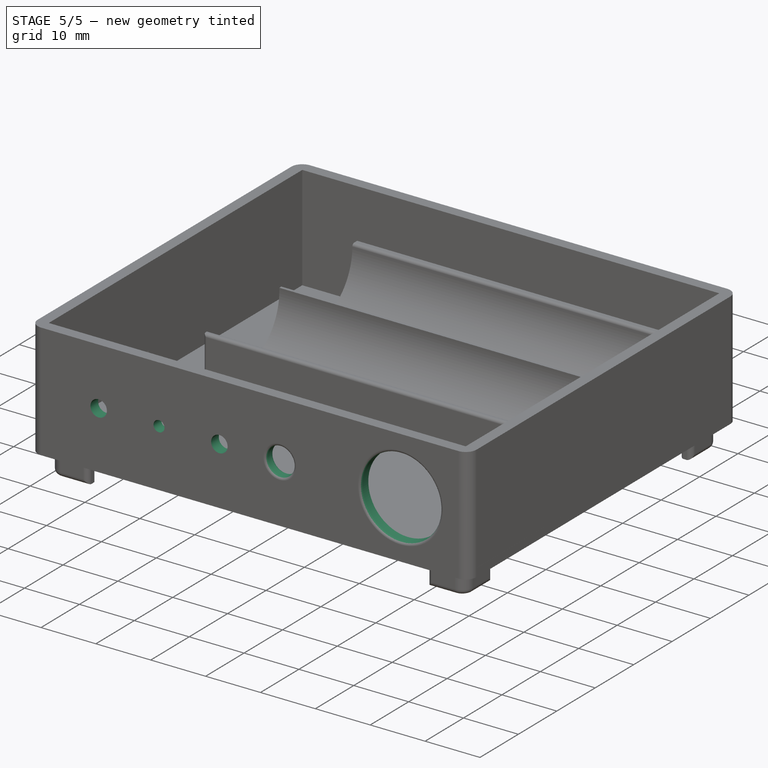
[diagram: stage 5 of 5 — iso view after this stage's code; geometry added in this stage tinted green]
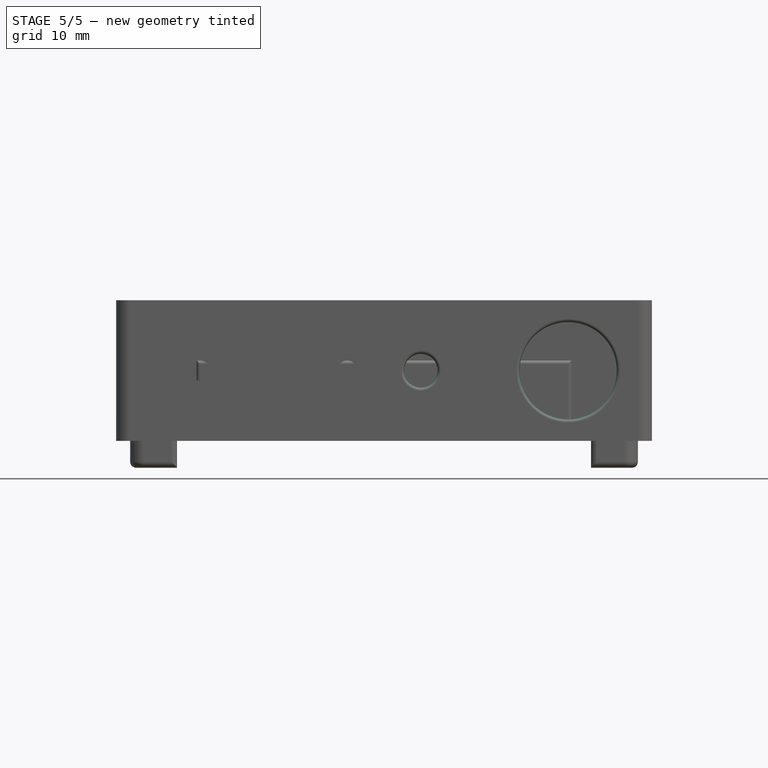
[diagram: stage 5 of 5 — front view after this stage's code; geometry added in this stage tinted green]
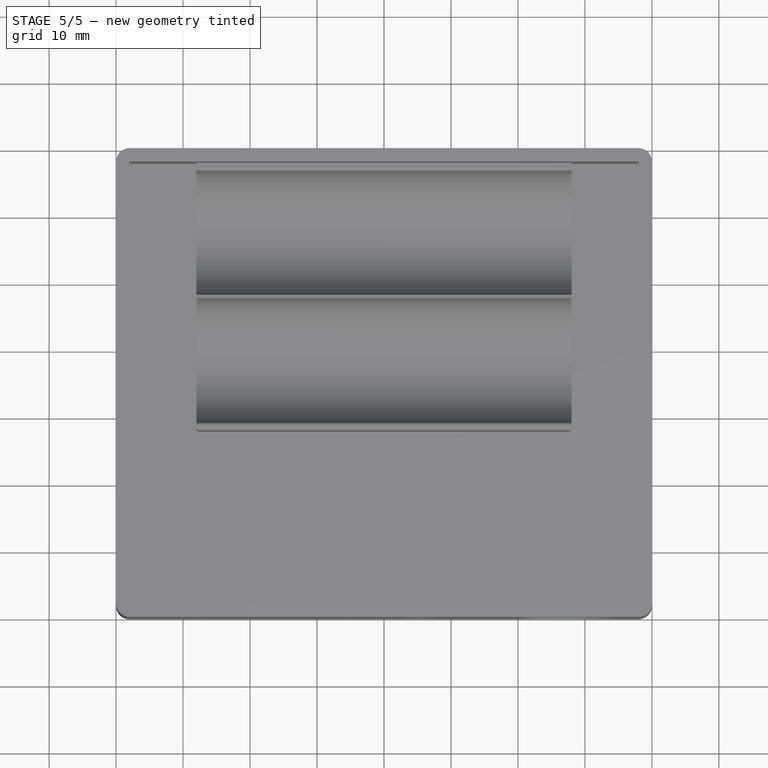
[diagram: stage 5 of 5 — top view after this stage's code; geometry added in this stage tinted green]
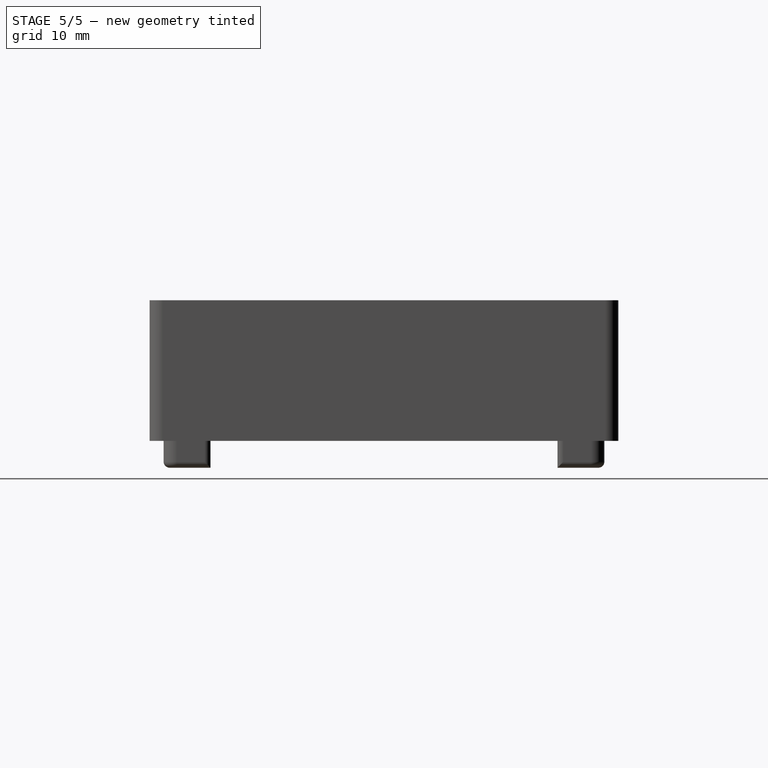
[diagram: stage 5 of 5 — right view after this stage's code; geometry added in this stage tinted green]
FEATURE [Sketcher::SketchObject] Sketch007
  ArcFitTolerance = 1e-06
  AttachmentSupport = -> [Pocket004]
  ExternalGeometry = -> [Pocket004]
  FullyConstrained = true
  MakeInternals = false
  MapMode = 5
  Placement = pos=(0,0,0) rot=(1,0,0;1.5708rad)
  sketch-geometry (10):
    g0: Circle CenterX=67.5 CenterY=10.5 CenterZ=0 NormalX=0 NormalY=0 NormalZ=1 AngleXU=0 Radius=7.25
    g1: Circle CenterX=45.5 CenterY=10.5 CenterZ=0 NormalX=0 NormalY=0 NormalZ=1 AngleXU=0 Radius=2.5
    g2: Circle CenterX=23.5 CenterY=10.5 CenterZ=0 NormalX=0 NormalY=0 NormalZ=1 AngleXU=0 Radius=1
    g3: Circle CenterX=12.5 CenterY=10.5 CenterZ=0 NormalX=0 NormalY=0 NormalZ=1 AngleXU=0 Radius=1.5
    g4: Circle CenterX=34.5 CenterY=10.5 CenterZ=0 NormalX=0 NormalY=0 NormalZ=1 AngleXU=0 Radius=1.5
    g5: LineSegment [constr] StartX=78 StartY=0 StartZ=0 EndX=67.5 EndY=10.5 EndZ=0
    g6: LineSegment [constr] StartX=67.5 StartY=10.5 StartZ=0 EndX=78 EndY=21 EndZ=0
    g7: LineSegment [constr] StartX=67.5 StartY=10.5 StartZ=0 EndX=45.5 EndY=10.5 EndZ=0
    g8: LineSegment [constr] StartX=45.5 StartY=10.5 StartZ=0 EndX=23.5 EndY=10.5 EndZ=0
    g9: LineSegment [constr] StartX=2 StartY=21 StartZ=0 EndX=12.5 EndY=10.5 EndZ=0
  constraints (25):
    c: Diameter(g0) = 14.5
    c: Diameter(g1) = 5
    c: Horizontal(g0,g1)
    c: Horizontal(g1,g4)
    c: Horizontal(g4,g2)
    c: Horizontal(g2,g3)
    c: Coincident(g5,g-4)
    c: Coincident(g5,g0)
    c: Coincident(g6,g0)
    c: Coincident(g6,g-3)
    c: Equal(g5,g6)
    c: DistanceX(g3,g2) = 11
    c: DistanceX(g2,g4) = 11
    c: Diameter(g2) = 2
    c: Equal(g4,g3)
    c: Diameter(g3) = 3
    c: Coincident(g7,g0)
    c: Coincident(g7,g1)
    c: Coincident(g8,g1)
    c: Coincident(g8,g2)
    c: Equal(g8,g7)
    c: Coincident(g9,g-3)
    c: Coincident(g9,g3)
    c: Equal(g9,g6)
    c: DistanceX(g7,g7) = 22
FEATURE [PartDesign::Pocket] Pocket005
  BaseFeature = -> Pocket004
  Direction = (0,1,-2e-16)
  Length = 3
  Length2 = 5
  Profile = -> Sketch007
  ReferenceAxis = -> Sketch007 [N_Axis]
  Refine = true
  Suppressed = false
  Type = 0
FEATURE [PartDesign::Fillet] Fillet001
  Base = -> Pocket005 [Edge70,Edge99,Edge101]
  BaseFeature = -> Pocket005
  Radius = 0.5
  Refine = true
  SupportTransform = false
  Suppressed = false
  UseAllEdges = false
FEATURE [PartDesign::Fillet] Fillet002
  Base = -> Fillet001 [Edge69]
  BaseFeature = -> Fillet001
  Radius = 1
  Refine = true
  SupportTransform = false
  Suppressed = false
  UseAllEdges = false
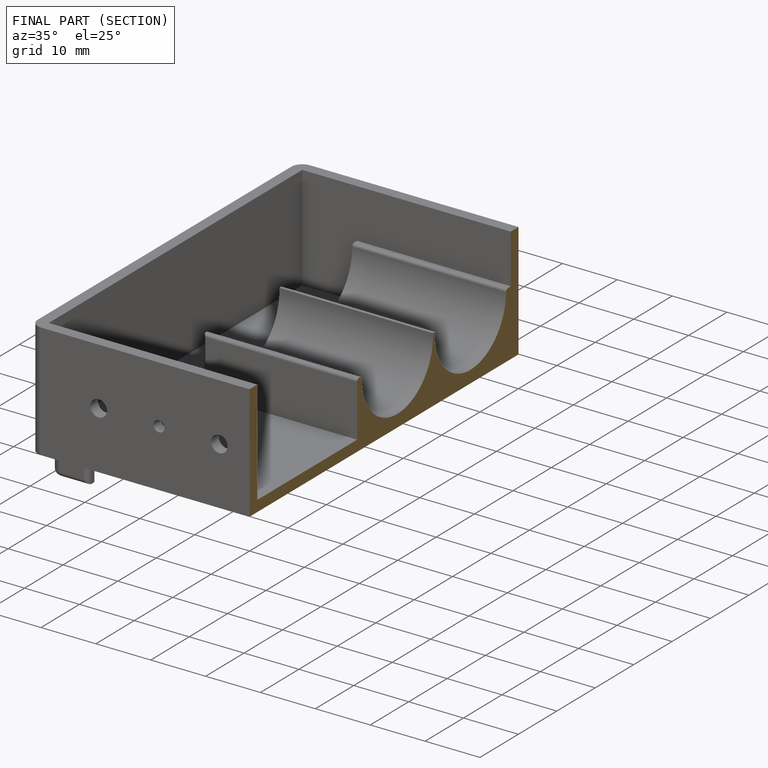
[diagram: finished part — half-section view (interior)]
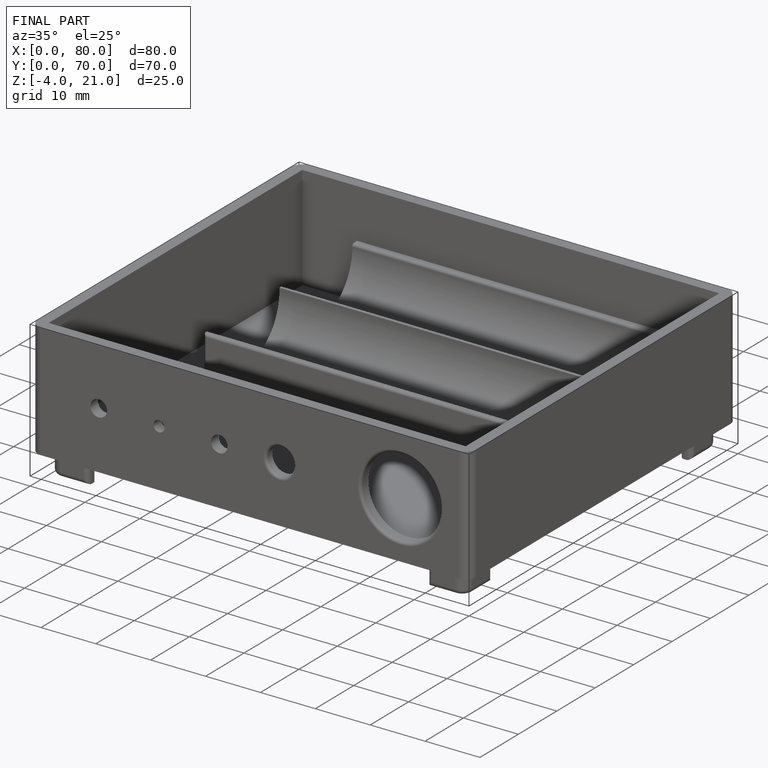
[diagram: finished part — iso view with bounding-box wireframe]
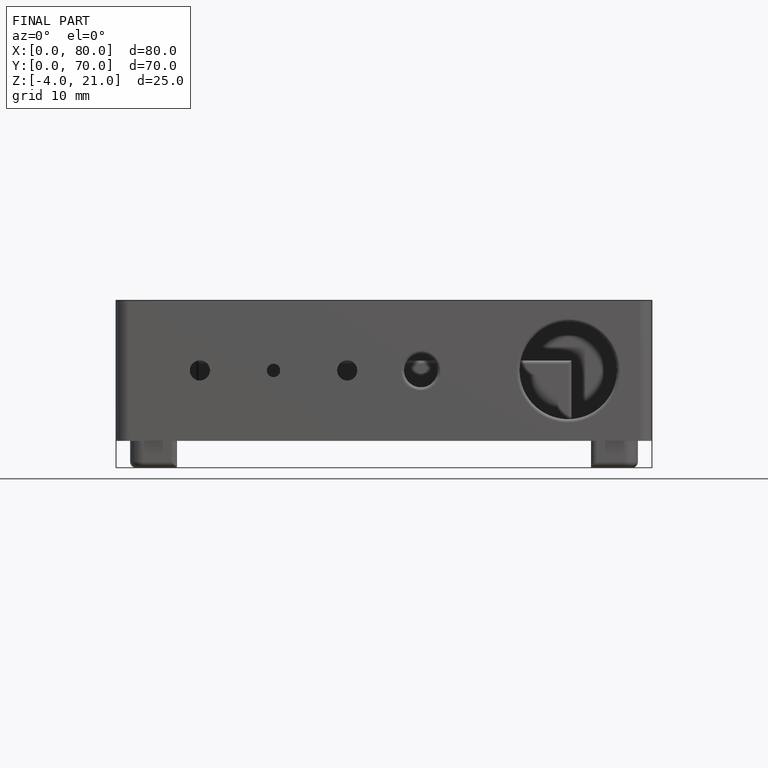
[diagram: finished part — front view with bounding-box wireframe]
